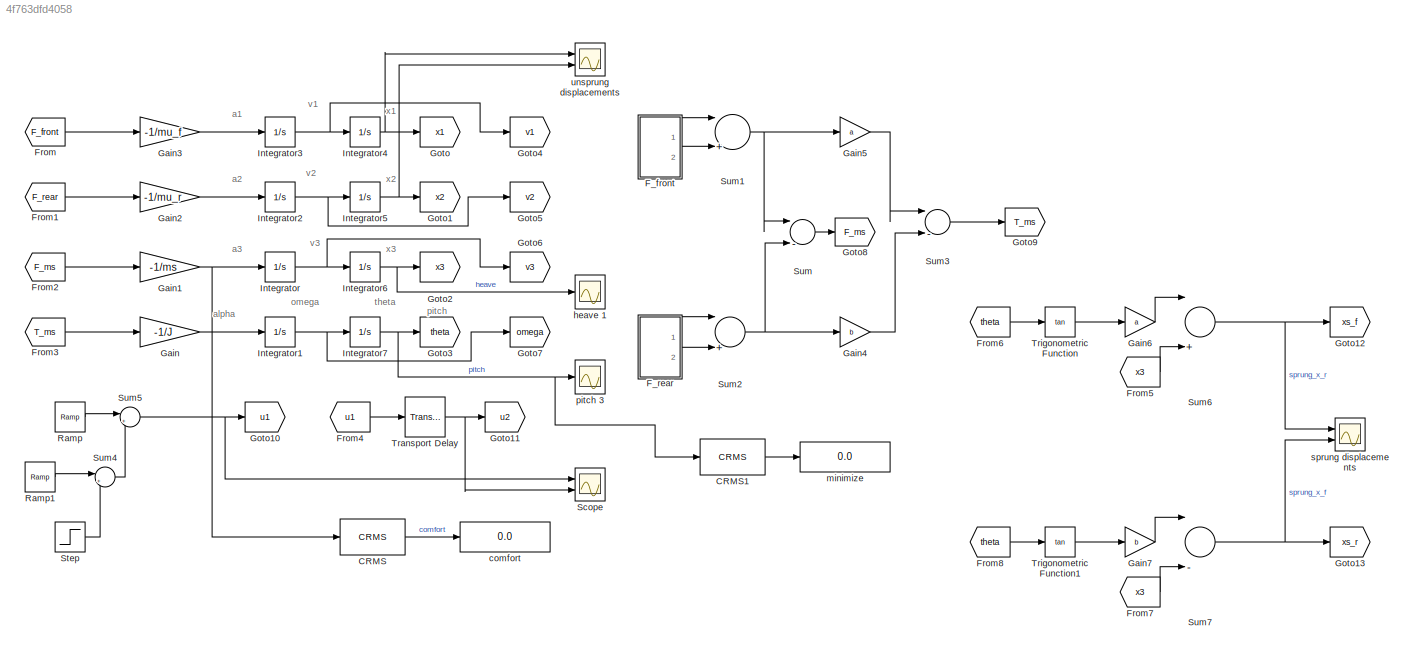
MODEL slx_4f763dfd4058
KIND model
CONFIG AbsTol = auto
CONFIG EnableMultiTasking = off
CONFIG FixedStep = auto
CONFIG MaxStep = 0.001
CONFIG MinStep = auto
CONFIG RelTol = 1e-3
CONFIG SampleTimeConstraint = Unconstrained
CONFIG Solver = ode23t
CONFIG SolverName = ode23t
CONFIG StartTime = 0.0
CONFIG StopTime = 5
BLOCK [Reference] CRMS  REF=sdolib/RMS Blocks/CRMS
  Ports = [1, 1]
  SourceBlock = sdolib/RMS Blocks/CRMS
  SourceProductBaseCode = SO
  SourceProductName = Simulink Design Optimization
  SourceType = Continuous RMS Value Block
BLOCK [Reference] CRMS1  REF=sdolib/RMS Blocks/CRMS
  Ports = [1, 1]
  SourceBlock = sdolib/RMS Blocks/CRMS
  SourceProductBaseCode = SO
  SourceProductName = Simulink Design Optimization
  SourceType = Continuous RMS Value Block
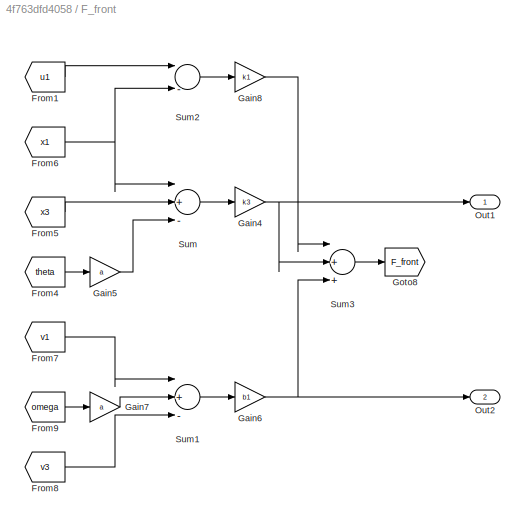
BLOCK [SubSystem] F_front
  Ports = [0, 2]
  RequestExecContextInheritance = off
BLOCK [From] F_front/From1
  GotoTag = u1
  TagVisibility = global
BLOCK [From] F_front/From4
  GotoTag = theta
  TagVisibility = global
BLOCK [From] F_front/From5
  GotoTag = x3
  TagVisibility = global
BLOCK [From] F_front/From6
  GotoTag = x1
  TagVisibility = global
BLOCK [From] F_front/From7
  GotoTag = v1
  TagVisibility = global
BLOCK [From] F_front/From8
  GotoTag = v3
  TagVisibility = global
BLOCK [From] F_front/From9
  GotoTag = omega
  TagVisibility = global
BLOCK [Gain] F_front/Gain4
  Gain = k3
  OutDataTypeStr = Inherit: Inherit via internal rule
  ParamDataTypeStr = Inherit: Inherit via internal rule
  SaturateOnIntegerOverflow = off
BLOCK [Gain] F_front/Gain5
  Gain = a
  OutDataTypeStr = Inherit: Inherit via internal rule
  ParamDataTypeStr = Inherit: Inherit via internal rule
  SaturateOnIntegerOverflow = off
BLOCK [Gain] F_front/Gain6
  Gain = b1
  OutDataTypeStr = Inherit: Inherit via internal rule
  ParamDataTypeStr = Inherit: Inherit via internal rule
  SaturateOnIntegerOverflow = off
BLOCK [Gain] F_front/Gain7
  Gain = a
  OutDataTypeStr = Inherit: Inherit via internal rule
  ParamDataTypeStr = Inherit: Inherit via internal rule
  SaturateOnIntegerOverflow = off
BLOCK [Gain] F_front/Gain8
  Gain = k1
  OutDataTypeStr = Inherit: Inherit via internal rule
  ParamDataTypeStr = Inherit: Inherit via internal rule
  SaturateOnIntegerOverflow = off
BLOCK [Goto] F_front/Goto8
  GotoTag = F_front
  TagVisibility = global
BLOCK [Outport] F_front/Out1
  IconDisplay = Port number
BLOCK [Outport] F_front/Out2
  IconDisplay = Port number
  Port = 2
BLOCK [Sum] F_front/Sum
  InputSameDT = off
  Inputs = |+--
  OutDataTypeStr = Inherit: Inherit via internal rule
  Ports = [3, 1]
  SaturateOnIntegerOverflow = off
BLOCK [Sum] F_front/Sum1
  InputSameDT = off
  Inputs = |+--
  OutDataTypeStr = Inherit: Inherit via internal rule
  Ports = [3, 1]
  SaturateOnIntegerOverflow = off
BLOCK [Sum] F_front/Sum2
  InputSameDT = off
  Inputs = |-+
  OutDataTypeStr = Inherit: Inherit via internal rule
  Ports = [2, 1]
  SaturateOnIntegerOverflow = off
BLOCK [Sum] F_front/Sum3
  InputSameDT = off
  Inputs = |+++
  OutDataTypeStr = Inherit: Inherit via internal rule
  Ports = [3, 1]
  SaturateOnIntegerOverflow = off
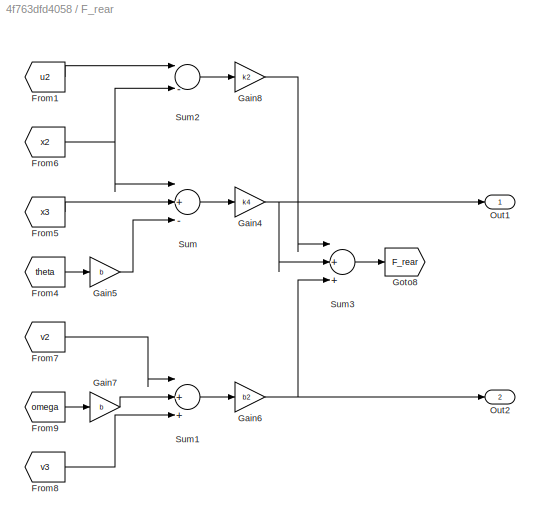
BLOCK [SubSystem] F_rear
  Ports = [0, 2]
  RequestExecContextInheritance = off
BLOCK [From] F_rear/From1
  GotoTag = u2
  TagVisibility = global
BLOCK [From] F_rear/From4
  GotoTag = theta
  TagVisibility = global
BLOCK [From] F_rear/From5
  GotoTag = x3
  TagVisibility = global
BLOCK [From] F_rear/From6
  GotoTag = x2
  TagVisibility = global
BLOCK [From] F_rear/From7
  GotoTag = v2
  TagVisibility = global
BLOCK [From] F_rear/From8
  GotoTag = v3
  TagVisibility = global
BLOCK [From] F_rear/From9
  GotoTag = omega
  TagVisibility = global
BLOCK [Gain] F_rear/Gain4
  Gain = k4
  OutDataTypeStr = Inherit: Inherit via internal rule
  ParamDataTypeStr = Inherit: Inherit via internal rule
  SaturateOnIntegerOverflow = off
BLOCK [Gain] F_rear/Gain5
  Gain = b
  OutDataTypeStr = Inherit: Inherit via internal rule
  ParamDataTypeStr = Inherit: Inherit via internal rule
  SaturateOnIntegerOverflow = off
BLOCK [Gain] F_rear/Gain6
  Gain = b2
  OutDataTypeStr = Inherit: Inherit via internal rule
  ParamDataTypeStr = Inherit: Inherit via internal rule
  SaturateOnIntegerOverflow = off
BLOCK [Gain] F_rear/Gain7
  Gain = b
  OutDataTypeStr = Inherit: Inherit via internal rule
  ParamDataTypeStr = Inherit: Inherit via internal rule
  SaturateOnIntegerOverflow = off
BLOCK [Gain] F_rear/Gain8
  Gain = k2
  OutDataTypeStr = Inherit: Inherit via internal rule
  ParamDataTypeStr = Inherit: Inherit via internal rule
  SaturateOnIntegerOverflow = off
BLOCK [Goto] F_rear/Goto8
  GotoTag = F_rear
  TagVisibility = global
BLOCK [Outport] F_rear/Out1
  IconDisplay = Port number
BLOCK [Outport] F_rear/Out2
  IconDisplay = Port number
  Port = 2
BLOCK [Sum] F_rear/Sum
  InputSameDT = off
  Inputs = |+-+
  OutDataTypeStr = Inherit: Inherit via internal rule
  Ports = [3, 1]
  SaturateOnIntegerOverflow = off
BLOCK [Sum] F_rear/Sum1
  InputSameDT = off
  Inputs = |++-
  OutDataTypeStr = Inherit: Inherit via internal rule
  Ports = [3, 1]
  SaturateOnIntegerOverflow = off
BLOCK [Sum] F_rear/Sum2
  InputSameDT = off
  Inputs = |-+
  OutDataTypeStr = Inherit: Inherit via internal rule
  Ports = [2, 1]
  SaturateOnIntegerOverflow = off
BLOCK [Sum] F_rear/Sum3
  InputSameDT = off
  Inputs = |+++
  OutDataTypeStr = Inherit: Inherit via internal rule
  Ports = [3, 1]
  SaturateOnIntegerOverflow = off
BLOCK [From] From
  GotoTag = F_front
  TagVisibility = global
BLOCK [From] From1
  GotoTag = F_rear
  TagVisibility = global
BLOCK [From] From2
  GotoTag = F_ms
  TagVisibility = global
BLOCK [From] From3
  GotoTag = T_ms
  TagVisibility = global
BLOCK [From] From4
  GotoTag = u1
  TagVisibility = global
BLOCK [From] From5
  GotoTag = x3
  TagVisibility = global
BLOCK [From] From6
  GotoTag = theta
  TagVisibility = global
BLOCK [From] From7
  GotoTag = x3
  TagVisibility = global
BLOCK [From] From8
  GotoTag = theta
  TagVisibility = global
BLOCK [Gain] Gain
  Gain = -1/J
  OutDataTypeStr = Inherit: Inherit via internal rule
  ParamDataTypeStr = Inherit: Inherit via internal rule
  SaturateOnIntegerOverflow = off
BLOCK [Gain] Gain1
  Gain = -1/ms
  OutDataTypeStr = Inherit: Inherit via internal rule
  ParamDataTypeStr = Inherit: Inherit via internal rule
  SaturateOnIntegerOverflow = off
BLOCK [Gain] Gain2
  Gain = -1/mu_r
  OutDataTypeStr = Inherit: Inherit via internal rule
  ParamDataTypeStr = Inherit: Inherit via internal rule
  SaturateOnIntegerOverflow = off
BLOCK [Gain] Gain3
  Gain = -1/mu_f
  OutDataTypeStr = Inherit: Inherit via internal rule
  ParamDataTypeStr = Inherit: Inherit via internal rule
  SaturateOnIntegerOverflow = off
BLOCK [Gain] Gain4
  Gain = b
  OutDataTypeStr = Inherit: Inherit via internal rule
  ParamDataTypeStr = Inherit: Inherit via internal rule
  SaturateOnIntegerOverflow = off
BLOCK [Gain] Gain5
  Gain = a
  OutDataTypeStr = Inherit: Inherit via internal rule
  ParamDataTypeStr = Inherit: Inherit via internal rule
  SaturateOnIntegerOverflow = off
BLOCK [Gain] Gain6
  Gain = a
  OutDataTypeStr = Inherit: Inherit via internal rule
  ParamDataTypeStr = Inherit: Inherit via internal rule
  SaturateOnIntegerOverflow = off
BLOCK [Gain] Gain7
  Gain = b
  OutDataTypeStr = Inherit: Inherit via internal rule
  ParamDataTypeStr = Inherit: Inherit via internal rule
  SaturateOnIntegerOverflow = off
BLOCK [Goto] Goto
  GotoTag = x1
  TagVisibility = global
BLOCK [Goto] Goto1
  GotoTag = x2
  TagVisibility = global
BLOCK [Goto] Goto10
  GotoTag = u1
  TagVisibility = global
BLOCK [Goto] Goto11
  GotoTag = u2
  TagVisibility = global
BLOCK [Goto] Goto12
  GotoTag = xs_f
  TagVisibility = global
BLOCK [Goto] Goto13
  GotoTag = xs_r
  TagVisibility = global
BLOCK [Goto] Goto2
  GotoTag = x3
  TagVisibility = global
BLOCK [Goto] Goto3
  GotoTag = theta
  TagVisibility = global
BLOCK [Goto] Goto4
  GotoTag = v1
  TagVisibility = global
BLOCK [Goto] Goto5
  GotoTag = v2
  TagVisibility = global
BLOCK [Goto] Goto6
  GotoTag = v3
  TagVisibility = global
BLOCK [Goto] Goto7
  GotoTag = omega
  TagVisibility = global
BLOCK [Goto] Goto8
  GotoTag = F_ms
  TagVisibility = global
BLOCK [Goto] Goto9
  GotoTag = T_ms
  TagVisibility = global
BLOCK [Integrator] Integrator
  Ports = [1, 1]
BLOCK [Integrator] Integrator1
  Ports = [1, 1]
BLOCK [Integrator] Integrator2
  Ports = [1, 1]
BLOCK [Integrator] Integrator3
  Ports = [1, 1]
BLOCK [Integrator] Integrator4
  Ports = [1, 1]
BLOCK [Integrator] Integrator5
  Ports = [1, 1]
BLOCK [Integrator] Integrator6
  Ports = [1, 1]
BLOCK [Integrator] Integrator7
  Ports = [1, 1]
BLOCK [Reference] Ramp  REF=simulink/Sources/Ramp
  Ports = [0, 1]
  SourceBlock = simulink/Sources/Ramp
  SourceProductBaseCode = SL
  SourceProductName = Simulink
  SourceType = Ramp
BLOCK [Reference] Ramp1  REF=simulink/Sources/Ramp
  Ports = [0, 1]
  SourceBlock = simulink/Sources/Ramp
  SourceProductBaseCode = SL
  SourceProductName = Simulink
  SourceType = Ramp
BLOCK [Scope] Scope
  Floating = off
  NumInputPorts = 2
  Ports = [2]
  ScopeSpecificationString = Simulink.scopes.TimeScopeBlockCfg('CurrentConfiguration', extmgr.ConfigurationSet(extmgr.Configuration('Core','General UI',true),extmgr.Configuration('Core','Source UI',true),extmgr.Configuration('Sources','WiredSimulink',true),extmgr.Configuration('Visuals','Time Domain',true,'SerializedDisplays',{struct('MinYLimReal','-0.03125','MaxYLimReal','0.28125','YLabelReal','','MinYLimMag','0.00000','MaxY...<+1392ch>
BLOCK [Step] Step
  After = 0.15
  SampleTime = 0
  Time = 1.3
BLOCK [Sum] Sum
  InputSameDT = off
  Inputs = |--
  OutDataTypeStr = Inherit: Inherit via internal rule
  Ports = [2, 1]
  SaturateOnIntegerOverflow = off
BLOCK [Sum] Sum1
  InputSameDT = off
  Inputs = |++
  OutDataTypeStr = Inherit: Inherit via internal rule
  Ports = [2, 1]
  SaturateOnIntegerOverflow = off
BLOCK [Sum] Sum2
  InputSameDT = off
  Inputs = |++
  OutDataTypeStr = Inherit: Inherit via internal rule
  Ports = [2, 1]
  SaturateOnIntegerOverflow = off
BLOCK [Sum] Sum3
  InputSameDT = off
  Inputs = |-+
  OutDataTypeStr = Inherit: Inherit via internal rule
  Ports = [2, 1]
  SaturateOnIntegerOverflow = off
BLOCK [Sum] Sum4
  IconShape = round
  InputSameDT = off
  Inputs = |++
  OutDataTypeStr = Inherit: Inherit via internal rule
  Ports = [2, 1]
  SaturateOnIntegerOverflow = off
BLOCK [Sum] Sum5
  IconShape = round
  InputSameDT = off
  Inputs = |+-
  OutDataTypeStr = Inherit: Inherit via internal rule
  Ports = [2, 1]
  SaturateOnIntegerOverflow = off
BLOCK [Sum] Sum6
  InputSameDT = off
  Inputs = |++
  OutDataTypeStr = Inherit: Inherit via internal rule
  Ports = [2, 1]
  SaturateOnIntegerOverflow = off
BLOCK [Sum] Sum7
  InputSameDT = off
  Inputs = |-+
  OutDataTypeStr = Inherit: Inherit via internal rule
  Ports = [2, 1]
  SaturateOnIntegerOverflow = off
BLOCK [TransportDelay] Transport Delay
  DelayTime = td
  Ports = [1, 1]
BLOCK [Trigonometry] Trigonometric Function
  Operator = tan
  OutputSignalType = real
  Ports = [1, 1]
BLOCK [Trigonometry] Trigonometric Function1
  Operator = tan
  OutputSignalType = real
  Ports = [1, 1]
BLOCK [Display] comfort
  Decimation = 1
  Ports = [1]
BLOCK [Scope] heave 1
  Floating = off
  NumInputPorts = 1
  Ports = [1]
  ScopeSpecificationString = Simulink.scopes.TimeScopeBlockCfg('CurrentConfiguration', extmgr.ConfigurationSet(extmgr.Configuration('Core','General UI',true),extmgr.Configuration('Core','Source UI',true),extmgr.Configuration('Sources','WiredSimulink',true,'DataLoggingVariableName','ScopeData1'),extmgr.Configuration('Visuals','Time Domain',true,'SerializedDisplays',{struct('MinYLimReal','-0.20009','MaxYLimReal','0.16543','YLab...<+1443ch>
BLOCK [Display] minimize
  Decimation = 1
  Ports = [1]
BLOCK [Scope] pitch 3
  Floating = off
  NumInputPorts = 1
  Ports = [1]
  ScopeSpecificationString = Simulink.scopes.TimeScopeBlockCfg('CurrentConfiguration', extmgr.ConfigurationSet(extmgr.Configuration('Core','General UI',true),extmgr.Configuration('Core','Source UI',true),extmgr.Configuration('Sources','WiredSimulink',true,'DataLoggingVariableName','ScopeData1'),extmgr.Configuration('Visuals','Time Domain',true,'SerializedDisplays',{struct('MinYLimReal','-0.13821','MaxYLimReal','0.13742','YLab...<+1443ch>
BLOCK [Scope] sprung displacements
  Floating = off
  NumInputPorts = 2
  Ports = [2]
  ScopeSpecificationString = Simulink.scopes.TimeScopeBlockCfg('CurrentConfiguration', extmgr.ConfigurationSet(extmgr.Configuration('Core','General UI',true),extmgr.Configuration('Core','Source UI',true),extmgr.Configuration('Sources','WiredSimulink',true,'DataLoggingVariableName','ScopeData3'),extmgr.Configuration('Visuals','Time Domain',true,'SerializedDisplays',{struct('MinYLimReal','-0.07334','MaxYLimReal','0.17679','YLab...<+1454ch>
BLOCK [Scope] unsprung displacements
  Floating = off
  NumInputPorts = 2
  Ports = [2]
  ScopeSpecificationString = Simulink.scopes.TimeScopeBlockCfg('CurrentConfiguration', extmgr.ConfigurationSet(extmgr.Configuration('Core','General UI',true),extmgr.Configuration('Core','Source UI',true),extmgr.Configuration('Sources','WiredSimulink',true,'DataLoggingVariableName','ScopeData2'),extmgr.Configuration('Visuals','Time Domain',true,'SerializedDisplays',{struct('MinYLimReal','-0.0778','MaxYLimReal','0.17541','YLabe...<+1462ch>
ANNOTATION (root): a1
ANNOTATION (root): a2
ANNOTATION (root): a3
ANNOTATION (root): alpha
ANNOTATION (root): omega
ANNOTATION (root): pitch
ANNOTATION (root): theta
ANNOTATION (root): v1
ANNOTATION (root): v2
ANNOTATION (root): v3
ANNOTATION (root): x1
ANNOTATION (root): x2
ANNOTATION (root): x3
LINE CRMS1:1 -> minimize:1
LINE CRMS:1 -> comfort:1
LINE F_front/From1:1 -> F_front/Sum2:1
LINE F_front/From4:1 -> F_front/Gain5:1
LINE F_front/From5:1 -> F_front/Sum:2
NET F_front/From6:1 -> F_front/Sum2:2, F_front/Sum:1
LINE F_front/From7:1 -> F_front/Sum1:1
LINE F_front/From8:1 -> F_front/Sum1:3
LINE F_front/From9:1 -> F_front/Gain7:1
NET F_front/Gain4:1 -> F_front/Out1:1, F_front/Sum3:2
LINE F_front/Gain5:1 -> F_front/Sum:3
NET F_front/Gain6:1 -> F_front/Out2:1, F_front/Sum3:3
LINE F_front/Gain7:1 -> F_front/Sum1:2
LINE F_front/Gain8:1 -> F_front/Sum3:1
LINE F_front/Sum1:1 -> F_front/Gain6:1
LINE F_front/Sum2:1 -> F_front/Gain8:1
LINE F_front/Sum3:1 -> F_front/Goto8:1
LINE F_front/Sum:1 -> F_front/Gain4:1
LINE F_front:1 -> Sum1:1
LINE F_front:2 -> Sum1:2
LINE F_rear/From1:1 -> F_rear/Sum2:1
LINE F_rear/From4:1 -> F_rear/Gain5:1
LINE F_rear/From5:1 -> F_rear/Sum:2
NET F_rear/From6:1 -> F_rear/Sum2:2, F_rear/Sum:1
LINE F_rear/From7:1 -> F_rear/Sum1:1
LINE F_rear/From8:1 -> F_rear/Sum1:3
LINE F_rear/From9:1 -> F_rear/Gain7:1
NET F_rear/Gain4:1 -> F_rear/Out1:1, F_rear/Sum3:2
LINE F_rear/Gain5:1 -> F_rear/Sum:3
NET F_rear/Gain6:1 -> F_rear/Out2:1, F_rear/Sum3:3
LINE F_rear/Gain7:1 -> F_rear/Sum1:2
LINE F_rear/Gain8:1 -> F_rear/Sum3:1
LINE F_rear/Sum1:1 -> F_rear/Gain6:1
LINE F_rear/Sum2:1 -> F_rear/Gain8:1
LINE F_rear/Sum3:1 -> F_rear/Goto8:1
LINE F_rear/Sum:1 -> F_rear/Gain4:1
LINE F_rear:1 -> Sum2:1
LINE F_rear:2 -> Sum2:2
LINE From1:1 -> Gain2:1
LINE From2:1 -> Gain1:1
LINE From3:1 -> Gain:1
LINE From4:1 -> Transport Delay:1
LINE From5:1 -> Sum6:2
LINE From6:1 -> Trigonometric Function:1
LINE From7:1 -> Sum7:2
LINE From8:1 -> Trigonometric Function1:1
LINE From:1 -> Gain3:1
NET Gain1:1 -> CRMS:1, Integrator:1
LINE Gain2:1 -> Integrator2:1
LINE Gain3:1 -> Integrator3:1
LINE Gain4:1 -> Sum3:2
LINE Gain5:1 -> Sum3:1
LINE Gain6:1 -> Sum6:1
LINE Gain7:1 -> Sum7:1
LINE Gain:1 -> Integrator1:1
NET Integrator1:1 -> Goto7:1, Integrator7:1
NET Integrator2:1 -> Goto5:1, Integrator5:1
NET Integrator3:1 -> Goto4:1, Integrator4:1
NET Integrator4:1 -> Goto:1, unsprung displacements:1
NET Integrator5:1 -> Goto1:1, unsprung displacements:2
NET Integrator6:1 -> Goto2:1, heave 1:1
NET Integrator7:1 -> CRMS1:1, Goto3:1, pitch 3:1
NET Integrator:1 -> Goto6:1, Integrator6:1
LINE Ramp1:1 -> Sum4:1
LINE Ramp:1 -> Sum5:1
LINE Step:1 -> Sum4:2
NET Sum1:1 -> Gain5:1, Sum:1
NET Sum2:1 -> Gain4:1, Sum:2
LINE Sum3:1 -> Goto9:1
LINE Sum4:1 -> Sum5:2
NET Sum5:1 -> Goto10:1, Scope:1
NET Sum6:1 -> Goto12:1, sprung displacements:1
NET Sum7:1 -> Goto13:1, sprung displacements:2
LINE Sum:1 -> Goto8:1
NET Transport Delay:1 -> Goto11:1, Scope:2
LINE Trigonometric Function1:1 -> Gain7:1
LINE Trigonometric Function:1 -> Gain6:1
note: NET lines group one-source signal fan-out (src -> all destinations, sorted); 1:1 wires keep LINE
